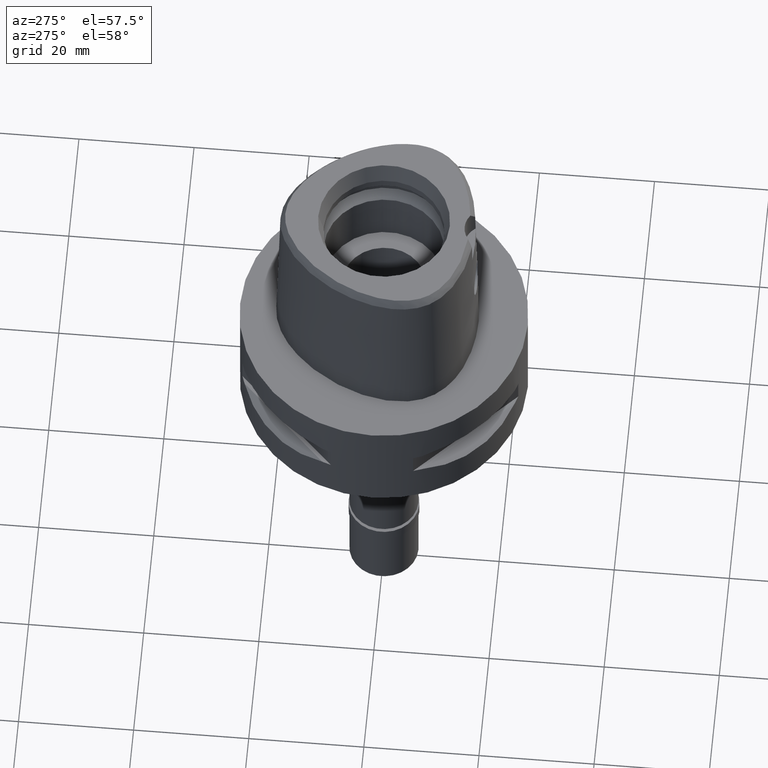
[diagram: clean part render]
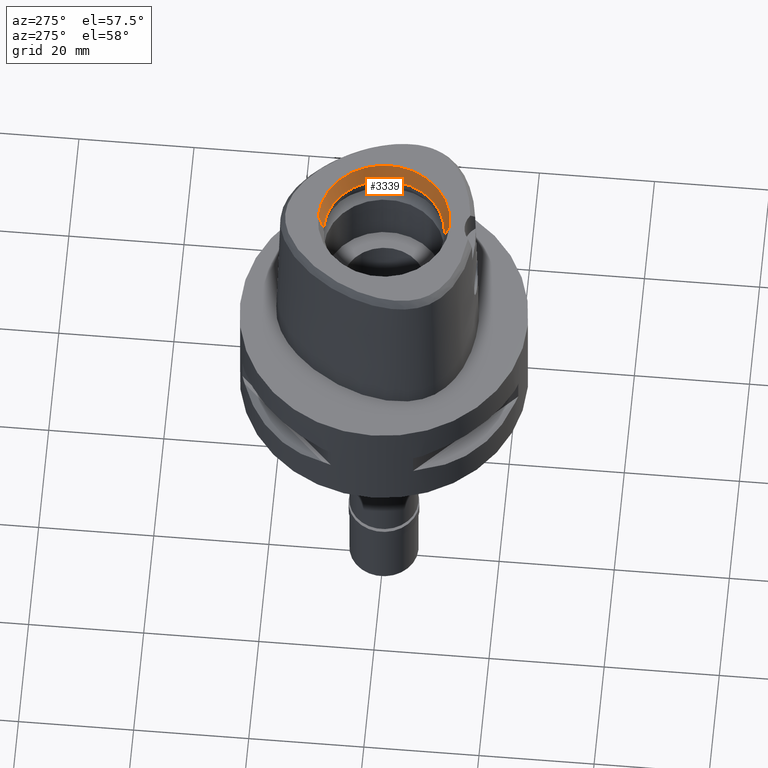
[diagram: same view with one face highlighted and labeled with its STEP entity id]
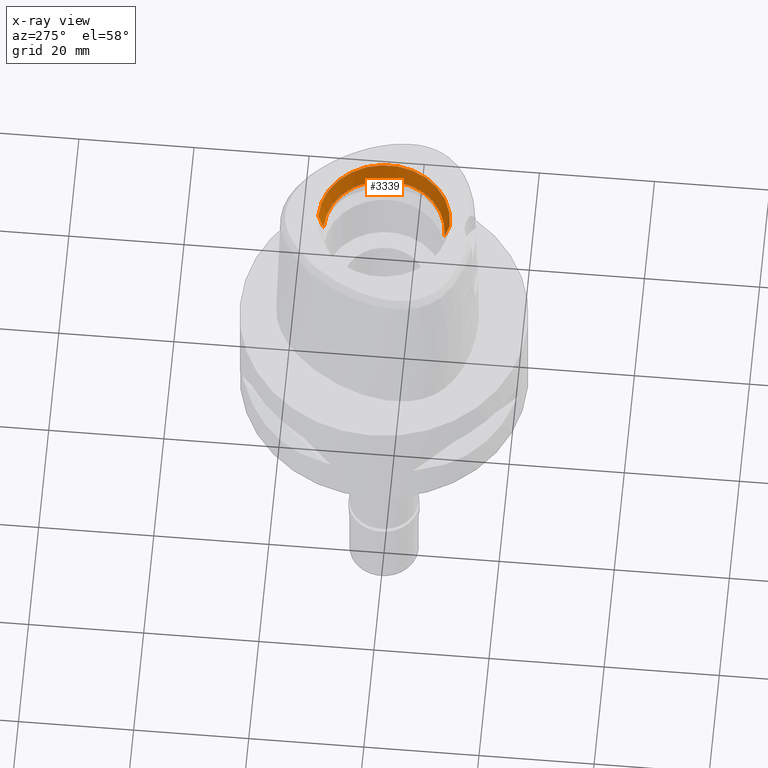
[diagram: x-ray of the same camera — body ghosted, the highlighted face saturated]
A machine part, auxiliary view. The second image highlights one B-rep face of the part: STEP entity #3339.
The next image is the same camera in x-ray: the body ghosted, the highlighted face saturated — about 0% of this face is hidden behind the body in this view.
In plain terms, the highlighted conical surface has half-angle 15 deg.
Its self-contained STEP definition (entity closure, byte-faithful):
#164 = CARTESIAN_POINT ( 'NONE',  ( 0.0000000000000000000, 1.570614979474999723E-14, 26.50089161528000048 ) ) ;
#248 = CONICAL_SURFACE ( 'NONE', #638, 10.96879163296000037, 0.2617993877991000029 ) ;
#280 = EDGE_LOOP ( 'NONE', ( #4044, #1793, #540, #292 ) ) ;
#292 = ORIENTED_EDGE ( 'NONE', *, *, #2801, .T. ) ;
#377 = CARTESIAN_POINT ( 'NONE',  ( 0.0000000000000000000, -11.43758326592000074, 30.00000000000000000 ) ) ;
#513 = EDGE_CURVE ( 'NONE', #1616, #4158, #4666, .T. ) ;
#540 = ORIENTED_EDGE ( 'NONE', *, *, #1458, .T. ) ;
#635 = EDGE_CURVE ( 'NONE', #4158, #3248, #2553, .T. ) ;
#638 = AXIS2_PLACEMENT_3D ( 'NONE', #4607, #3535, #4222 ) ;
#1383 = CARTESIAN_POINT ( 'NONE',  ( 0.0000000000000000000, -10.50000000000000000, 26.50089161528000048 ) ) ;
#1458 = EDGE_CURVE ( 'NONE', #1616, #4163, #1757, .T. ) ;
#1534 = DIRECTION ( 'NONE',  ( 0.0000000000000000000, -1.000000000000000000, 0.0000000000000000000 ) ) ;
#1616 = VERTEX_POINT ( 'NONE', #3044 ) ;
#1757 = LINE ( 'NONE', #1383, #2714 ) ;
#1793 = ORIENTED_EDGE ( 'NONE', *, *, #513, .F. ) ;
#1808 = DIRECTION ( 'NONE',  ( 0.0000000000000000000, -0.2588190451022134297, 0.9659258262891506908 ) ) ;
#1951 = CARTESIAN_POINT ( 'NONE',  ( 0.0000000000000000000, 11.43758326592000074, 30.00000000000000000 ) ) ;
#2132 = DIRECTION ( 'NONE',  ( 0.0000000000000000000, 0.2588190451022134297, 0.9659258262891506908 ) ) ;
#2244 = CARTESIAN_POINT ( 'NONE',  ( 0.0000000000000000000, 10.50000000000000000, 26.50089161528000048 ) ) ;
#2273 = CARTESIAN_POINT ( 'NONE',  ( 0.0000000000000000000, 10.50000000000000000, 26.50089161528000048 ) ) ;
#2362 = CIRCLE ( 'NONE', #3765, 11.43758326592000074 ) ;
#2553 = LINE ( 'NONE', #2273, #3579 ) ;
#2714 = VECTOR ( 'NONE', #1808, 999.9999999999998863 ) ;
#2801 = EDGE_CURVE ( 'NONE', #4163, #3248, #2362, .T. ) ;
#3010 = DIRECTION ( 'NONE',  ( 0.0000000000000000000, 0.0000000000000000000, 1.000000000000000000 ) ) ;
#3044 = CARTESIAN_POINT ( 'NONE',  ( 0.0000000000000000000, -10.50000000000000000, 26.50089161528000048 ) ) ;
#3248 = VERTEX_POINT ( 'NONE', #1951 ) ;
#3331 = CARTESIAN_POINT ( 'NONE',  ( 0.0000000000000000000, 1.570614979474999723E-14, 30.00000000000000000 ) ) ;
#3339 = ADVANCED_FACE ( 'NONE', ( #3564 ), #248, .F. ) ;
#3535 = DIRECTION ( 'NONE',  ( 0.0000000000000000000, 0.0000000000000000000, 1.000000000000000000 ) ) ;
#3554 = DIRECTION ( 'NONE',  ( 0.0000000000000000000, -1.000000000000000000, 0.0000000000000000000 ) ) ;
#3564 = FACE_OUTER_BOUND ( 'NONE', #280, .T. ) ;
#3579 = VECTOR ( 'NONE', #2132, 999.9999999999998863 ) ;
#3765 = AXIS2_PLACEMENT_3D ( 'NONE', #3331, #3010, #1534 ) ;
#4044 = ORIENTED_EDGE ( 'NONE', *, *, #635, .F. ) ;
#4158 = VERTEX_POINT ( 'NONE', #2244 ) ;
#4163 = VERTEX_POINT ( 'NONE', #377 ) ;
#4222 = DIRECTION ( 'NONE',  ( 0.0000000000000000000, 1.000000000000000000, 0.0000000000000000000 ) ) ;
#4434 = AXIS2_PLACEMENT_3D ( 'NONE', #164, #4646, #3554 ) ;
#4607 = CARTESIAN_POINT ( 'NONE',  ( 0.0000000000000000000, 1.570614979474999723E-14, 28.25044580763999846 ) ) ;
#4646 = DIRECTION ( 'NONE',  ( 0.0000000000000000000, 0.0000000000000000000, 1.000000000000000000 ) ) ;
#4666 = CIRCLE ( 'NONE', #4434, 10.50000000000000000 ) ;